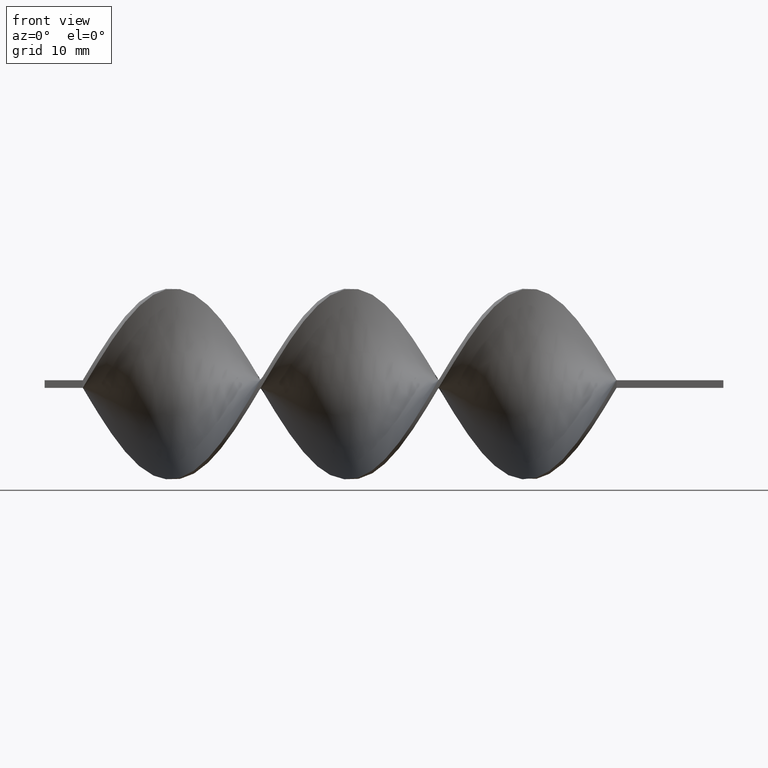
[diagram: clean part render]
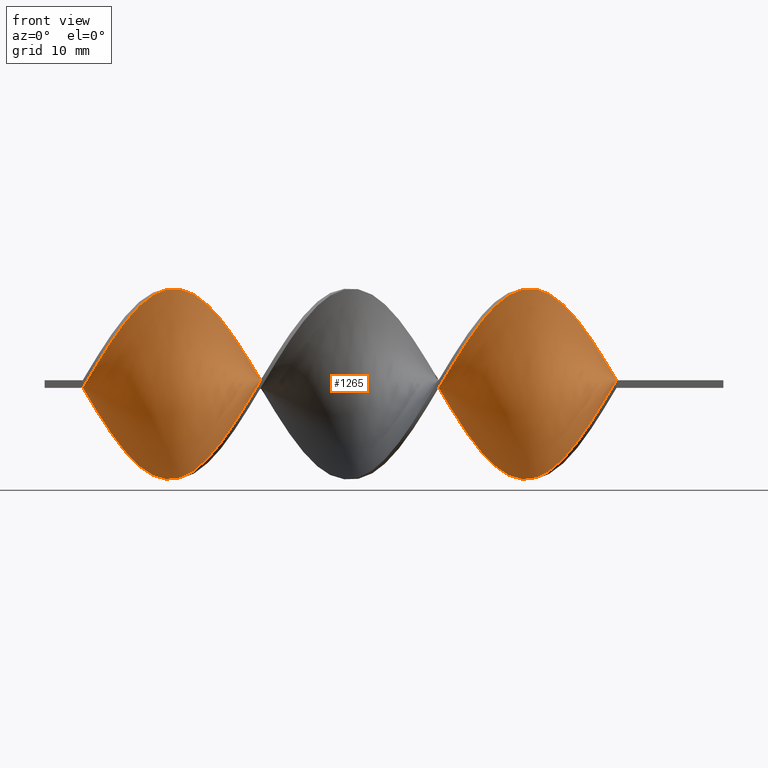
[diagram: same view with one face highlighted and labeled with its STEP entity id]
A machine part, front view. The second image highlights one B-rep face of the part: STEP entity #1265.
In plain terms, the highlighted face is a freeform B-spline surface patch.
Its self-contained STEP definition (entity closure, byte-faithful):
#2 = EDGE_CURVE ( 'NONE', #1228, #751, #1031, .T. ) ;
#4 = CARTESIAN_POINT ( 'NONE',  ( -41.82051282051281760, -10.07673670631161222, -7.567476692410682659 ) ) ;
#11 = CARTESIAN_POINT ( 'NONE',  ( -83.10256410256410220, 12.43928900838886875, -2.017774790278262564 ) ) ;
#21 = CARTESIAN_POINT ( 'NONE',  ( -26.56410256410256210, -2.003062940240564860, 12.34859258609801458 ) ) ;
#29 = CARTESIAN_POINT ( 'NONE',  ( -55.28205128205128460, 9.687945681259156672, -7.914777853924392481 ) ) ;
#36 = CARTESIAN_POINT ( 'NONE',  ( -15.79487179487179205, 12.01711488568186859, 3.476916712307497548 ) ) ;
#47 = CARTESIAN_POINT ( 'NONE',  ( -54.38461538461538680, 8.726917657472025525, -9.091107431892417878 ) ) ;
#54 = CARTESIAN_POINT ( 'NONE',  ( -64.25641025641024839, 10.83583873464323943, 6.251767663373711592 ) ) ;
#69 = VECTOR ( 'NONE', #1115, 1000.000000000000000 ) ;
#70 = CARTESIAN_POINT ( 'NONE',  ( -32.84615384615384670, 10.07673670631160512, -7.567476692410685324 ) ) ;
#77 = CARTESIAN_POINT ( 'NONE',  ( -21.17948717948717530, -7.512301267086279211, -10.00326595030512777 ) ) ;
#78 = CARTESIAN_POINT ( 'NONE',  ( -56.17948717948717530, 10.64897370504628604, -6.738448275956370637 ) ) ;
#87 = CARTESIAN_POINT ( 'NONE',  ( -40.02564102564101489, 11.95215010832772862, 3.994174999484630284 ) ) ;
#90 = CARTESIAN_POINT ( 'NONE',  ( -46.30769230769229949, 4.900069209374405155, 11.51040059004641591 ) ) ;
#93 = CARTESIAN_POINT ( 'NONE',  ( -44.51282051282050389, 7.512301267086275658, 10.00326595030512777 ) ) ;
#96 = CARTESIAN_POINT ( 'NONE',  ( -67.84615384615385381, -7.512301267086279211, -10.00326595030512777 ) ) ;
#103 = CARTESIAN_POINT ( 'NONE',  ( -17.58974358974358410, -11.30056190668700999, -5.366311637720501793 ) ) ;
#106 = CARTESIAN_POINT ( 'NONE',  ( -43.61538461538461320, 8.726917657472037959, 9.091107431892408997 ) ) ;
#107 = CARTESIAN_POINT ( 'NONE',  ( -13.99999999999999822, 12.49999999999999822, 0.5000000000000000000 ) ) ;
#108 = CARTESIAN_POINT ( 'NONE',  ( -27.46153846153846345, -3.502453542048290291, 12.10537671137499238 ) ) ;
#109 = CARTESIAN_POINT ( 'NONE',  ( -18.48717948717948545, 10.07673670631160512, 7.567476692410683548 ) ) ;
#111 = CARTESIAN_POINT ( 'NONE',  ( -23.87179487179487225, -3.502453542048291624, -12.10537671137499238 ) ) ;
#115 = CARTESIAN_POINT ( 'NONE',  ( -68.74358974358973740, -6.297684876700518686, -10.91542446871784477 ) ) ;
#123 = CARTESIAN_POINT ( 'NONE',  ( -31.05128205128205821, -8.726917657472034406, 9.091107431892414326 ) ) ;
#129 = CARTESIAN_POINT ( 'NONE',  ( -42.71794871794872250, -9.024823023018370804, -8.663288602095487789 ) ) ;
#138 = CARTESIAN_POINT ( 'NONE',  ( -67.84615384615385381, -7.512301267086279211, -10.00326595030512777 ) ) ;
#146 = CARTESIAN_POINT ( 'NONE',  ( -73.23076923076924061, -2.003062940240564860, 12.34859258609801458 ) ) ;
#155 = CARTESIAN_POINT ( 'NONE',  ( -32.84615384615384670, -10.64897370504628960, 6.738448275956368860 ) ) ;
#157 = CARTESIAN_POINT ( 'NONE',  ( -65.15384615384614619, 10.07673670631160689, 7.567476692410683548 ) ) ;
#171 = CARTESIAN_POINT ( 'NONE',  ( -76.82051282051281760, -7.512301267086276546, 10.00326595030512955 ) ) ;
#192 = ORIENTED_EDGE ( 'NONE', *, *, #699, .F. ) ;
#198 = CARTESIAN_POINT ( 'NONE',  ( -51.69230769230769340, -3.965052966688988434, 11.86500547708895326 ) ) ;
#205 = CARTESIAN_POINT ( 'NONE',  ( -20.28205128205128105, -8.726917657472039735, -9.091107431892410773 ) ) ;
#208 = CARTESIAN_POINT ( 'NONE',  ( -48.10256410256409509, 2.003062940240569745, 12.34859258609801280 ) ) ;
#213 = CARTESIAN_POINT ( 'NONE',  ( -41.82051282051281760, 10.64897370504628960, 6.738448275956367084 ) ) ;
#218 = CARTESIAN_POINT ( 'NONE',  ( -29.25641025641025550, 5.405725462660110558, -11.38356088229227048 ) ) ;
#220 = CARTESIAN_POINT ( 'NONE',  ( -70.53846153846153300, 2.524380470717862757, 12.34645007188563959 ) ) ;
#228 = CARTESIAN_POINT ( 'NONE',  ( -37.33333333333332860, 12.49999999999999822, -0.5000000000000015543 ) ) ;
#230 = ORIENTED_EDGE ( 'NONE', *, *, #2, .T. ) ;
#232 = CARTESIAN_POINT ( 'NONE',  ( -57.97435897435897090, -11.59494076297487553, 4.936058634336744966 ) ) ;
#235 = CARTESIAN_POINT ( 'NONE',  ( -53.48717948717948900, -6.689317401192618640, 10.57133069703628614 ) ) ;
#236 = LINE ( 'NONE', #107, #69 ) ;
#238 = CARTESIAN_POINT ( 'NONE',  ( -31.94871794871794535, -9.687945681259160224, 7.914777853924392481 ) ) ;
#240 = CARTESIAN_POINT ( 'NONE',  ( -26.56410256410256210, -2.003062940240564860, 12.34859258609801458 ) ) ;
#242 = CARTESIAN_POINT ( 'NONE',  ( -49.89743589743589069, -1.010354066142503893, 12.46912926635333818 ) ) ;
#246 = CARTESIAN_POINT ( 'NONE',  ( -71.43589743589743080, -2.003062940240569301, -12.34859258609801458 ) ) ;
#247 = CARTESIAN_POINT ( 'NONE',  ( -13.99999999999999822, 12.49999999999999822, 0.5000000000000000000 ) ) ;
#251 = CARTESIAN_POINT ( 'NONE',  ( -81.30769230769232081, -11.95215010832773039, 3.994174999484638722 ) ) ;
#253 = CARTESIAN_POINT ( 'NONE',  ( -28.35897435897435770, -4.900069209374403378, 11.51040059004641769 ) ) ;
#254 = CARTESIAN_POINT ( 'NONE',  ( -29.25641025641025905, -6.297684876700517798, 10.91542446871784655 ) ) ;
#258 = CARTESIAN_POINT ( 'NONE',  ( -76.82051282051281760, -7.512301267086276546, 10.00326595030512955 ) ) ;
#260 = CARTESIAN_POINT ( 'NONE',  ( -79.51282051282051100, 10.07673670631160512, -7.567476692410685324 ) ) ;
#269 = CARTESIAN_POINT ( 'NONE',  ( -22.07692307692308376, 5.405725462660113223, 11.38356088229226870 ) ) ;
#272 = CARTESIAN_POINT ( 'NONE',  ( -83.10256410256410220, 12.43928900838886875, -2.017774790278262564 ) ) ;
#276 = CARTESIAN_POINT ( 'NONE',  ( -68.74358974358973740, 5.405725462660113223, 11.38356088229226870 ) ) ;
#279 = CARTESIAN_POINT ( 'NONE',  ( -40.02564102564102200, -11.59494076297487730, -4.936058634336734308 ) ) ;
#280 = CARTESIAN_POINT ( 'NONE',  ( -75.92307692307690559, 5.405725462660110558, -11.38356088229227048 ) ) ;
#285 = CARTESIAN_POINT ( 'NONE',  ( -80.41025641025640880, -11.30056190668700822, 5.366311637720503569 ) ) ;
#290 = CARTESIAN_POINT ( 'NONE',  ( -35.53846153846153300, -12.25643054996943171, 2.505974894881450421 ) ) ;
#291 = CARTESIAN_POINT ( 'NONE',  ( -84.00000000000000000, -12.50000000000000178, -0.4999999999999985012 ) ) ;
#302 = CARTESIAN_POINT ( 'NONE',  ( -57.97435897435897090, 11.95215010832772684, -3.994174999484640498 ) ) ;
#324 = CARTESIAN_POINT ( 'NONE',  ( -33.74358974358973740, 10.83583873464323766, -6.251767663373713368 ) ) ;
#331 = CARTESIAN_POINT ( 'NONE',  ( -69.64102564102564941, 3.965052966688987546, 11.86500547708895148 ) ) ;
#336 = CARTESIAN_POINT ( 'NONE',  ( -50.79487179487178139, -2.524380470717860536, 12.34645007188564136 ) ) ;
#339 = CARTESIAN_POINT ( 'NONE',  ( -28.35897435897435059, 3.965052966688984437, -11.86500547708895326 ) ) ;
#341 = CARTESIAN_POINT ( 'NONE',  ( -62.46153846153845990, 12.01711488568186859, 3.476916712307497548 ) ) ;
#345 = CARTESIAN_POINT ( 'NONE',  ( -18.48717948717948545, -10.64897370504629137, -6.738448275956367972 ) ) ;
#347 = CARTESIAN_POINT ( 'NONE',  ( -71.43589743589743080, -2.003062940240569301, -12.34859258609801458 ) ) ;
#358 = CARTESIAN_POINT ( 'NONE',  ( -31.94871794871793824, 9.024823023018361923, -8.663288602095494895 ) ) ;
#360 = CARTESIAN_POINT ( 'NONE',  ( -74.12820512820510999, -3.502453542048290291, 12.10537671137499238 ) ) ;
#365 = CARTESIAN_POINT ( 'NONE',  ( -53.48717948717948900, -6.689317401192618640, 10.57133069703628614 ) ) ;
#369 = CARTESIAN_POINT ( 'NONE',  ( -21.17948717948717530, -7.512301267086279211, -10.00326595030512777 ) ) ;
#372 = CARTESIAN_POINT ( 'NONE',  ( -25.66666666666666785, -0.5036723384328426478, 12.59180846082103855 ) ) ;
#373 = CARTESIAN_POINT ( 'NONE',  ( -20.28205128205128460, 7.972909339725126721, 9.759100511780298248 ) ) ;
#375 = CARTESIAN_POINT ( 'NONE',  ( -51.69230769230769340, -3.965052966688988434, 11.86500547708895326 ) ) ;
#379 = CARTESIAN_POINT ( 'NONE',  ( -76.82051282051281760, 6.689317401192616863, -10.57133069703628436 ) ) ;
#380 = CARTESIAN_POINT ( 'NONE',  ( -16.69230769230769340, 11.59494076297487375, 4.936058634336738749 ) ) ;
#385 = CARTESIAN_POINT ( 'NONE',  ( -62.46153846153845990, -12.25643054996943171, -2.505974894881445980 ) ) ;
#387 = CARTESIAN_POINT ( 'NONE',  ( -27.46153846153846345, -3.502453542048290291, 12.10537671137499238 ) ) ;
#389 = CARTESIAN_POINT ( 'NONE',  ( -80.41025641025640880, 10.83583873464323766, -6.251767663373713368 ) ) ;
#395 = CARTESIAN_POINT ( 'NONE',  ( -45.41025641025640880, -5.405725462660122993, -11.38356088229226515 ) ) ;
#404 = CARTESIAN_POINT ( 'NONE',  ( -78.61538461538461320, -9.687945681259160224, 7.914777853924392481 ) ) ;
#405 = CARTESIAN_POINT ( 'NONE',  ( -15.79487179487179205, 12.01711488568186859, 3.476916712307497548 ) ) ;
#408 = CARTESIAN_POINT ( 'NONE',  ( -36.43589743589743790, -12.56071099161113480, 1.017774790278262564 ) ) ;
#412 = CARTESIAN_POINT ( 'NONE',  ( -79.51282051282051100, -10.64897370504628960, 6.738448275956368860 ) ) ;
#413 = CARTESIAN_POINT ( 'NONE',  ( -75.92307692307693401, -6.297684876700518686, 10.91542446871784477 ) ) ;
#422 = CARTESIAN_POINT ( 'NONE',  ( -17.58974358974358765, 10.83583873464323943, 6.251767663373711592 ) ) ;
#424 = CARTESIAN_POINT ( 'NONE',  ( -62.46153846153845990, 12.01711488568186859, 3.476916712307497548 ) ) ;
#428 = CARTESIAN_POINT ( 'NONE',  ( -40.92307692307691980, -10.83583873464324299, -6.251767663373710704 ) ) ;
#436 = CARTESIAN_POINT ( 'NONE',  ( -77.71794871794872961, -8.726917657472034406, 9.091107431892414326 ) ) ;
#440 = CARTESIAN_POINT ( 'NONE',  ( -71.43589743589743080, 1.010354066142511442, 12.46912926635333640 ) ) ;
#447 = CARTESIAN_POINT ( 'NONE',  ( -66.05128205128204399, 9.024823023018365475, 8.663288602095489566 ) ) ;
#458 = CARTESIAN_POINT ( 'NONE',  ( -14.89743589743589247, -12.56071099161113658, -1.017774790278256791 ) ) ;
#463 = CARTESIAN_POINT ( 'NONE',  ( -66.05128205128204399, 9.024823023018365475, 8.663288602095489566 ) ) ;
#467 = CARTESIAN_POINT ( 'NONE',  ( -48.10256410256409509, 2.003062940240569745, 12.34859258609801280 ) ) ;
#468 = CARTESIAN_POINT ( 'NONE',  ( -41.82051282051281760, -10.07673670631161045, -7.567476692410682659 ) ) ;
#470 = CARTESIAN_POINT ( 'NONE',  ( -66.94871794871794179, -8.726917657472039735, -9.091107431892412549 ) ) ;
#476 = CARTESIAN_POINT ( 'NONE',  ( -29.25641025641025550, 5.405725462660111447, -11.38356088229226870 ) ) ;
#479 = CARTESIAN_POINT ( 'NONE',  ( -47.20512820512820440, 3.502453542048287183, 12.10537671137499238 ) ) ;
#487 = CARTESIAN_POINT ( 'NONE',  ( -31.05128205128205465, 7.972909339725120503, -9.759100511780301801 ) ) ;
#489 = CARTESIAN_POINT ( 'NONE',  ( -57.07692307692306599, -10.83583873464323766, 6.251767663373719586 ) ) ;
#493 = CARTESIAN_POINT ( 'NONE',  ( -49.89743589743589069, -1.010354066142503893, 12.46912926635333818 ) ) ;
#495 = CARTESIAN_POINT ( 'NONE',  ( -17.58974358974358410, -11.30056190668700999, -5.366311637720501793 ) ) ;
#497 = CARTESIAN_POINT ( 'NONE',  ( -66.94871794871792758, -8.726917657472039735, -9.091107431892410773 ) ) ;
#501 = CARTESIAN_POINT ( 'NONE',  ( -61.56410256410256920, -12.56071099161113480, -1.017774790278256569 ) ) ;
#506 = CARTESIAN_POINT ( 'NONE',  ( -39.12820512820512420, -12.01711488568187569, -3.476916712307494439 ) ) ;
#510 = CARTESIAN_POINT ( 'NONE',  ( -33.74358974358974450, -11.30056190668700822, 5.366311637720503569 ) ) ;
#511 = CARTESIAN_POINT ( 'NONE',  ( -13.99999999999999822, 12.49999999999999822, 0.5000000000000000000 ) ) ;
#516 = EDGE_CURVE ( 'NONE', #1343, #751, #1180, .T. ) ;
#517 = CARTESIAN_POINT ( 'NONE',  ( -43.61538461538461320, -7.972909339725131161, -9.759100511780294696 ) ) ;
#528 = CARTESIAN_POINT ( 'NONE',  ( -73.23076923076922640, 1.010354066142507001, -12.46912926635333640 ) ) ;
#536 = CARTESIAN_POINT ( 'NONE',  ( -56.17948717948717530, 10.64897370504628604, -6.738448275956371525 ) ) ;
#544 = CARTESIAN_POINT ( 'NONE',  ( -31.05128205128205465, -8.726917657472034406, 9.091107431892416102 ) ) ;
#547 = CARTESIAN_POINT ( 'NONE',  ( -37.33333333333332860, -12.50000000000000178, -0.4999999999999985012 ) ) ;
#553 = CARTESIAN_POINT ( 'NONE',  ( -69.64102564102564941, 3.965052966688987546, 11.86500547708895148 ) ) ;
#558 = CARTESIAN_POINT ( 'NONE',  ( -66.94871794871794179, 7.972909339725125832, 9.759100511780298248 ) ) ;
#567 = CARTESIAN_POINT ( 'NONE',  ( -84.00000000000000000, 4.166666666666666075, -0.5000000000000005551 ) ) ;
#570 = CARTESIAN_POINT ( 'NONE',  ( -51.69230769230769340, 4.900069209374400714, -11.51040059004641769 ) ) ;
#577 = FACE_OUTER_BOUND ( 'NONE', #1103, .T. ) ;
#578 = CARTESIAN_POINT ( 'NONE',  ( -47.20512820512820440, -2.524380470717865421, -12.34645007188563959 ) ) ;
#584 = CARTESIAN_POINT ( 'NONE',  ( -30.15384615384614975, 6.689317401192616863, -10.57133069703628436 ) ) ;
#587 = CARTESIAN_POINT ( 'NONE',  ( -56.17948717948717530, -10.07673670631160689, 7.567476692410687100 ) ) ;
#588 = CARTESIAN_POINT ( 'NONE',  ( -75.02564102564102200, -4.900069209374403378, 11.51040059004641769 ) ) ;
#596 = CARTESIAN_POINT ( 'NONE',  ( -70.53846153846153300, -3.502453542048291624, -12.10537671137499238 ) ) ;
#601 = CARTESIAN_POINT ( 'NONE',  ( -59.76923076923077360, -12.43928900838887230, 2.017774790278263897 ) ) ;
#605 = CARTESIAN_POINT ( 'NONE',  ( -68.74358974358973740, -6.297684876700517798, -10.91542446871784655 ) ) ;
#607 = CARTESIAN_POINT ( 'NONE',  ( -63.35897435897436480, 11.59494076297487375, 4.936058634336738749 ) ) ;
#609 = CARTESIAN_POINT ( 'NONE',  ( -31.94871794871793824, 9.024823023018361923, -8.663288602095494895 ) ) ;
#612 = CARTESIAN_POINT ( 'NONE',  ( -40.92307692307691980, 11.30056190668700822, 5.366311637720500904 ) ) ;
#616 = CARTESIAN_POINT ( 'NONE',  ( -75.02564102564102200, 3.965052966688984437, -11.86500547708895326 ) ) ;
#619 = CARTESIAN_POINT ( 'NONE',  ( -35.53846153846153300, 12.01711488568186859, -3.476916712307501989 ) ) ;
#622 = CARTESIAN_POINT ( 'NONE',  ( -19.38461538461538325, 9.024823023018365475, 8.663288602095489566 ) ) ;
#631 = CARTESIAN_POINT ( 'NONE',  ( -30.15384615384615330, -7.512301267086276546, 10.00326595030512955 ) ) ;
#638 = CARTESIAN_POINT ( 'NONE',  ( -16.69230769230769695, 11.59494076297487375, 4.936058634336738749 ) ) ;
#647 = CARTESIAN_POINT ( 'NONE',  ( -75.92307692307691980, 5.405725462660111447, -11.38356088229226870 ) ) ;
#657 = CARTESIAN_POINT ( 'NONE',  ( -13.99999999999999467, -12.50000000000000178, 0.5000000000000000000 ) ) ;
#658 = CARTESIAN_POINT ( 'NONE',  ( -79.51282051282051100, 10.07673670631160334, -7.567476692410685324 ) ) ;
#661 = CARTESIAN_POINT ( 'NONE',  ( -33.74358974358974450, -11.30056190668700822, 5.366311637720503569 ) ) ;
#663 = CARTESIAN_POINT ( 'NONE',  ( -78.61538461538461320, -9.687945681259160224, 7.914777853924392481 ) ) ;
#689 = CARTESIAN_POINT ( 'NONE',  ( -50.79487179487178850, 3.502453542048282742, -12.10537671137499238 ) ) ;
#699 = EDGE_CURVE ( 'NONE', #1228, #985, #236, .T. ) ;
#701 = CARTESIAN_POINT ( 'NONE',  ( -46.30769230769229949, 4.900069209374405155, 11.51040059004641591 ) ) ;
#702 = CARTESIAN_POINT ( 'NONE',  ( -54.38461538461538680, 8.726917657472025525, -9.091107431892417878 ) ) ;
#706 = CARTESIAN_POINT ( 'NONE',  ( -57.07692307692307310, 11.30056190668700289, -5.366311637720509786 ) ) ;
#709 = CARTESIAN_POINT ( 'NONE',  ( -22.07692307692307665, -6.297684876700518686, -10.91542446871784477 ) ) ;
#711 = CARTESIAN_POINT ( 'NONE',  ( -49.00000000000000000, 0.5036723384328417596, 12.59180846082103855 ) ) ;
#716 = CARTESIAN_POINT ( 'NONE',  ( -43.61538461538461320, 8.726917657472037959, 9.091107431892407220 ) ) ;
#718 = CARTESIAN_POINT ( 'NONE',  ( -36.43589743589743080, 12.43928900838886875, -2.017774790278262564 ) ) ;
#725 = CARTESIAN_POINT ( 'NONE',  ( -26.56410256410255855, 1.010354066142507001, -12.46912926635333640 ) ) ;
#728 = CARTESIAN_POINT ( 'NONE',  ( -38.23076923076921929, 12.56071099161113125, 1.017774790278253905 ) ) ;
#731 = CARTESIAN_POINT ( 'NONE',  ( -58.87179487179486159, -12.01711488568187036, 3.476916712307509094 ) ) ;
#733 = CARTESIAN_POINT ( 'NONE',  ( -59.76923076923076650, -12.43928900838887230, 2.017774790278263897 ) ) ;
#737 = CARTESIAN_POINT ( 'NONE',  ( -61.56410256410256920, -12.56071099161113658, -1.017774790278256791 ) ) ;
#740 = CARTESIAN_POINT ( 'NONE',  ( -31.05128205128205110, 7.972909339725121391, -9.759100511780301801 ) ) ;
#744 = CARTESIAN_POINT ( 'NONE',  ( -80.41025641025640880, -11.30056190668700822, 5.366311637720503569 ) ) ;
#746 =( BOUNDED_SURFACE ( )  B_SPLINE_SURFACE ( 1, 2, ( 
 ( #961, #458, #1439, #1077, #103, #345, #848, #205, #77, #709, #1213, #1469, #1085, #1356, #725, #842, #1205, #476, #584, #487, #609, #70, #324, #1111, #824, #1102, #1339, #1569, #1601, #87, #1459, #213, #1321, #716, #93, #1560, #701, #1221, #467, #1578, #493, #336, #198, #1452, #365, #857, #836, #1590, #1091, #232, #731, #601, #1139, #737, #385, #994, #1389, #747, #1268, #497, #138, #115, #1253, #892, #246, #1398, #528, #1490, #616, #647, #379, #863, #868, #260, #1117, #998, #1505, #11, #1607 ),
 ( #873, #988, #405, #638, #1017, #1380, #622, #1485, #1147, #269, #1495, #756, #1237, #372, #21, #108, #253, #1363, #631, #123, #238, #1242, #510, #1260, #765, #1124, #1615, #1369, #506, #1512, #1132, #4, #129, #517, #1004, #395, #883, #1172, #1026, #1404, #1155, #1183, #1055, #899, #774, #47, #29, #536, #1275, #302, #1047, #1544, #910, #783, #424, #1412, #54, #157, #447, #558, #1536, #276, #553, #1287, #440, #926, #146, #1518, #1425, #413, #171, #436, #663, #808, #285, #919, #1418, #1164, #291 ) ),
 .UNSPECIFIED., .F., .F., .F. ) 
 B_SPLINE_SURFACE_WITH_KNOTS ( ( 2, 2 ),
 ( 3, 2, 2, 2, 2, 2, 2, 2, 2, 2, 2, 2, 2, 2, 2, 2, 2, 2, 2, 2, 2, 2, 2, 2, 2, 2, 2, 2, 2, 2, 2, 2, 2, 2, 2, 2, 2, 2, 2, 3 ),
 ( 0.000000000000000000, 1.000000000000000000 ),
 ( 0.000000000000000000, 0.01923076923076923184, 0.03846153846153846367, 0.05769230769230769551, 0.07692307692307692735, 0.09615384615384615918, 0.1153846153846153910, 0.1346153846153846090, 0.1538461538461538547, 0.1730769230769230727, 0.1923076923076923184, 0.2115384615384615363, 0.2307692307692307820, 0.2500000000000000000, 0.2692307692307692180, 0.2884615384615384359, 0.3076923076923077094, 0.3269230769230769273, 0.3461538461538461453, 0.3653846153846153633, 0.3846153846153846367, 0.4038461538461538547, 0.4230769230769230727, 0.4423076923076922906, 0.4615384615384615641, 0.4807692307692307820, 0.5000000000000000000, 0.5192307692307692735, 0.5384615384615384359, 0.5576923076923077094, 0.5769230769230768718, 0.5961538461538461453, 0.6153846153846154188, 0.6346153846153845812, 0.6538461538461538547, 0.6730769230769231282, 0.6923076923076922906, 0.7115384615384615641, 0.7307692307692307265, 0.7500000000000000000 ),
 .UNSPECIFIED. ) 
 GEOMETRIC_REPRESENTATION_ITEM ( )  RATIONAL_B_SPLINE_SURFACE ( (
 ( 1.000000000000000000, 0.9927088740980539727, 1.000000000000000000, 0.9927088740980539727, 1.000000000000000000, 0.9927088740980539727, 1.000000000000000000, 0.9927088740980539727, 1.000000000000000000, 0.9927088740980539727, 1.000000000000000000, 0.9927088740980539727, 1.000000000000000000, 0.9927088740980539727, 1.000000000000000000, 0.9927088740980539727, 1.000000000000000000, 0.9927088740980539727, 1.000000000000000000, 0.9927088740980539727, 1.000000000000000000, 0.9927088740980539727, 1.000000000000000000, 0.9927088740980539727, 1.000000000000000000, 0.9927088740980539727, 1.000000000000000000, 0.9927088740980539727, 1.000000000000000000, 0.9927088740980539727, 1.000000000000000000, 0.9927088740980539727, 1.000000000000000000, 0.9927088740980539727, 1.000000000000000000, 0.9927088740980539727, 1.000000000000000000, 0.9927088740980539727, 1.000000000000000000, 0.9927088740980539727, 1.000000000000000000, 0.9927088740980539727, 1.000000000000000000, 0.9927088740980539727, 1.000000000000000000, 0.9927088740980539727, 1.000000000000000000, 0.9927088740980539727, 1.000000000000000000, 0.9927088740980539727, 1.000000000000000000, 0.9927088740980539727, 1.000000000000000000, 0.9927088740980539727, 1.000000000000000000, 0.9927088740980539727, 1.000000000000000000, 0.9927088740980539727, 1.000000000000000000, 0.9927088740980539727, 1.000000000000000000, 0.9927088740980539727, 1.000000000000000000, 0.9927088740980539727, 1.000000000000000000, 0.9927088740980539727, 1.000000000000000000, 0.9927088740980539727, 1.000000000000000000, 0.9927088740980539727, 1.000000000000000000, 0.9927088740980539727, 1.000000000000000000, 0.9927088740980539727, 1.000000000000000000, 0.9927088740980539727, 1.000000000000000000, 0.9927088740980539727, 1.000000000000000000),
 ( 1.000000000000000000, 0.9927088740980539727, 1.000000000000000000, 0.9927088740980539727, 1.000000000000000000, 0.9927088740980539727, 1.000000000000000000, 0.9927088740980539727, 1.000000000000000000, 0.9927088740980539727, 1.000000000000000000, 0.9927088740980539727, 1.000000000000000000, 0.9927088740980539727, 1.000000000000000000, 0.9927088740980539727, 1.000000000000000000, 0.9927088740980539727, 1.000000000000000000, 0.9927088740980539727, 1.000000000000000000, 0.9927088740980539727, 1.000000000000000000, 0.9927088740980539727, 1.000000000000000000, 0.9927088740980539727, 1.000000000000000000, 0.9927088740980539727, 1.000000000000000000, 0.9927088740980539727, 1.000000000000000000, 0.9927088740980539727, 1.000000000000000000, 0.9927088740980539727, 1.000000000000000000, 0.9927088740980539727, 1.000000000000000000, 0.9927088740980539727, 1.000000000000000000, 0.9927088740980539727, 1.000000000000000000, 0.9927088740980539727, 1.000000000000000000, 0.9927088740980539727, 1.000000000000000000, 0.9927088740980539727, 1.000000000000000000, 0.9927088740980539727, 1.000000000000000000, 0.9927088740980539727, 1.000000000000000000, 0.9927088740980539727, 1.000000000000000000, 0.9927088740980539727, 1.000000000000000000, 0.9927088740980539727, 1.000000000000000000, 0.9927088740980539727, 1.000000000000000000, 0.9927088740980539727, 1.000000000000000000, 0.9927088740980539727, 1.000000000000000000, 0.9927088740980539727, 1.000000000000000000, 0.9927088740980539727, 1.000000000000000000, 0.9927088740980539727, 1.000000000000000000, 0.9927088740980539727, 1.000000000000000000, 0.9927088740980539727, 1.000000000000000000, 0.9927088740980539727, 1.000000000000000000, 0.9927088740980539727, 1.000000000000000000, 0.9927088740980539727, 1.000000000000000000) ) ) 
 REPRESENTATION_ITEM ( '' )  SURFACE ( )  );
#747 = CARTESIAN_POINT ( 'NONE',  ( -65.15384615384614619, -10.64897370504629137, -6.738448275956367972 ) ) ;
#751 = VERTEX_POINT ( 'NONE', #1182 ) ;
#754 = CARTESIAN_POINT ( 'NONE',  ( -83.10256410256410220, -12.56071099161113480, 1.017774790278262564 ) ) ;
#756 = CARTESIAN_POINT ( 'NONE',  ( -23.87179487179487580, 2.524380470717862757, 12.34645007188564136 ) ) ;
#757 = CARTESIAN_POINT ( 'NONE',  ( -30.15384615384615330, -7.512301267086276546, 10.00326595030512955 ) ) ;
#760 = CARTESIAN_POINT ( 'NONE',  ( -75.02564102564102200, 3.965052966688984437, -11.86500547708895326 ) ) ;
#765 = CARTESIAN_POINT ( 'NONE',  ( -35.53846153846153300, -12.25643054996943171, 2.505974894881450421 ) ) ;
#774 = CARTESIAN_POINT ( 'NONE',  ( -53.48717948717948900, 7.512301267086271217, -10.00326595030513133 ) ) ;
#783 = CARTESIAN_POINT ( 'NONE',  ( -61.56410256410256920, 12.43928900838886875, 2.017774790278256791 ) ) ;
#808 = CARTESIAN_POINT ( 'NONE',  ( -79.51282051282051100, -10.64897370504628960, 6.738448275956369748 ) ) ;
#816 = CARTESIAN_POINT ( 'NONE',  ( -42.71794871794872250, -9.024823023018370804, -8.663288602095487789 ) ) ;
#824 = CARTESIAN_POINT ( 'NONE',  ( -35.53846153846153300, 12.01711488568186859, -3.476916712307501989 ) ) ;
#836 = CARTESIAN_POINT ( 'NONE',  ( -55.28205128205128460, -9.024823023018361923, 8.663288602095494895 ) ) ;
#839 = CARTESIAN_POINT ( 'NONE',  ( -69.64102564102563520, -4.900069209374406931, -11.51040059004641591 ) ) ;
#842 = CARTESIAN_POINT ( 'NONE',  ( -27.46153846153845990, 2.524380470717861424, -12.34645007188564136 ) ) ;
#844 = CARTESIAN_POINT ( 'NONE',  ( -22.97435897435896734, -4.900069209374406931, -11.51040059004641591 ) ) ;
#848 = CARTESIAN_POINT ( 'NONE',  ( -19.38461538461537970, -9.687945681259163777, -7.914777853924387152 ) ) ;
#852 = CARTESIAN_POINT ( 'NONE',  ( -33.74358974358973740, 10.83583873464323766, -6.251767663373713368 ) ) ;
#857 = CARTESIAN_POINT ( 'NONE',  ( -54.38461538461537970, -7.972909339725118727, 9.759100511780305354 ) ) ;
#860 = CARTESIAN_POINT ( 'NONE',  ( -25.66666666666666785, -0.5036723384328442021, -12.59180846082103855 ) ) ;
#863 = CARTESIAN_POINT ( 'NONE',  ( -77.71794871794872961, 7.972909339725120503, -9.759100511780301801 ) ) ;
#865 = CARTESIAN_POINT ( 'NONE',  ( -20.28205128205128105, -8.726917657472039735, -9.091107431892412549 ) ) ;
#868 = CARTESIAN_POINT ( 'NONE',  ( -78.61538461538461320, 9.024823023018361923, -8.663288602095494895 ) ) ;
#873 = CARTESIAN_POINT ( 'NONE',  ( -13.99999999999999822, 12.49999999999999822, 0.5000000000000000000 ) ) ;
#875 = CARTESIAN_POINT ( 'NONE',  ( -28.35897435897435770, -4.900069209374403378, 11.51040059004641769 ) ) ;
#879 = CARTESIAN_POINT ( 'NONE',  ( -82.20512820512820440, 12.01711488568186859, -3.476916712307501989 ) ) ;
#883 = CARTESIAN_POINT ( 'NONE',  ( -46.30769230769230660, -3.965052966688992875, -11.86500547708895148 ) ) ;
#891 = CARTESIAN_POINT ( 'NONE',  ( -82.20512820512820440, -12.25643054996943171, 2.505974894881450421 ) ) ;
#892 = CARTESIAN_POINT ( 'NONE',  ( -70.53846153846153300, -3.502453542048291624, -12.10537671137499238 ) ) ;
#894 = CARTESIAN_POINT ( 'NONE',  ( -39.12820512820512420, -12.01711488568187569, -3.476916712307494439 ) ) ;
#899 = CARTESIAN_POINT ( 'NONE',  ( -52.58974358974358410, 6.297684876700509804, -10.91542446871784477 ) ) ;
#910 = CARTESIAN_POINT ( 'NONE',  ( -60.66666666666666430, 12.49999999999999822, 0.5000000000000000000 ) ) ;
#916 = CARTESIAN_POINT ( 'NONE',  ( -15.79487179487178850, -12.25643054996943171, -2.505974894881445980 ) ) ;
#919 = CARTESIAN_POINT ( 'NONE',  ( -81.30769230769233502, -11.95215010832773039, 3.994174999484638722 ) ) ;
#922 = CARTESIAN_POINT ( 'NONE',  ( -44.51282051282051100, -6.689317401192623080, -10.57133069703628259 ) ) ;
#926 = CARTESIAN_POINT ( 'NONE',  ( -72.33333333333332860, -0.5036723384328426478, 12.59180846082103855 ) ) ;
#942 = CARTESIAN_POINT ( 'NONE',  ( -53.48717948717948900, 7.512301267086271217, -10.00326595030513133 ) ) ;
#945 = CARTESIAN_POINT ( 'NONE',  ( -13.99999999999999467, -12.50000000000000178, 0.5000000000000000000 ) ) ;
#948 = CARTESIAN_POINT ( 'NONE',  ( -68.74358974358973740, 5.405725462660112335, 11.38356088229227048 ) ) ;
#949 = CARTESIAN_POINT ( 'NONE',  ( -84.00000000000000000, -12.50000000000000178, -0.4999999999999985012 ) ) ;
#956 = CARTESIAN_POINT ( 'NONE',  ( -18.48717948717948545, -10.64897370504629137, -6.738448275956367084 ) ) ;
#961 = CARTESIAN_POINT ( 'NONE',  ( -13.99999999999999467, -12.50000000000000178, 0.5000000000000000000 ) ) ;
#962 = ORIENTED_EDGE ( 'NONE', *, *, #1543, .F. ) ;
#966 = CARTESIAN_POINT ( 'NONE',  ( -54.38461538461537970, -7.972909339725119615, 9.759100511780305354 ) ) ;
#974 = CARTESIAN_POINT ( 'NONE',  ( -72.33333333333332860, -0.5036723384328442021, -12.59180846082103855 ) ) ;
#975 = CARTESIAN_POINT ( 'NONE',  ( -72.33333333333332860, -0.5036723384328426478, 12.59180846082103855 ) ) ;
#982 = CARTESIAN_POINT ( 'NONE',  ( -24.76923076923076650, -2.003062940240569301, -12.34859258609801458 ) ) ;
#984 = CARTESIAN_POINT ( 'NONE',  ( -60.66666666666666430, 12.49999999999999822, 0.5000000000000000000 ) ) ;
#985 = VERTEX_POINT ( 'NONE', #657 ) ;
#988 = CARTESIAN_POINT ( 'NONE',  ( -14.89743589743589602, 12.43928900838886875, 2.017774790278256791 ) ) ;
#989 = CARTESIAN_POINT ( 'NONE',  ( -22.07692307692308020, 5.405725462660112335, 11.38356088229227048 ) ) ;
#991 = CARTESIAN_POINT ( 'NONE',  ( -62.46153846153845990, -12.25643054996943171, -2.505974894881445980 ) ) ;
#994 = CARTESIAN_POINT ( 'NONE',  ( -63.35897435897434349, -11.95215010832773217, -3.994174999484634281 ) ) ;
#998 = CARTESIAN_POINT ( 'NONE',  ( -81.30769230769233502, 11.59494076297487197, -4.936058634336743189 ) ) ;
#1000 = CARTESIAN_POINT ( 'NONE',  ( -22.97435897435897090, 3.965052966688987546, 11.86500547708895148 ) ) ;
#1004 = CARTESIAN_POINT ( 'NONE',  ( -44.51282051282051100, -6.689317401192623080, -10.57133069703628259 ) ) ;
#1013 = CARTESIAN_POINT ( 'NONE',  ( -75.92307692307691980, -6.297684876700517798, 10.91542446871784655 ) ) ;
#1017 = CARTESIAN_POINT ( 'NONE',  ( -17.58974358974358765, 10.83583873464323943, 6.251767663373711592 ) ) ;
#1023 = CARTESIAN_POINT ( 'NONE',  ( -77.71794871794874382, -8.726917657472034406, 9.091107431892416102 ) ) ;
#1026 = CARTESIAN_POINT ( 'NONE',  ( -48.10256410256410220, -1.010354066142519658, -12.46912926635333818 ) ) ;
#1029 = CARTESIAN_POINT ( 'NONE',  ( -38.23076923076922640, -12.43928900838887230, -2.017774790278253683 ) ) ;
#1030 = CARTESIAN_POINT ( 'NONE',  ( -76.82051282051281760, 6.689317401192616863, -10.57133069703628436 ) ) ;
#1031 =( BOUNDED_CURVE ( )  B_SPLINE_CURVE ( 2, ( #511, #1243, #36, #380, #422, #109, #1357, #373, #1254, #989, #1000, #1486, #1364, #1497, #240, #387, #875, #254, #757, #544, #1261, #155, #661, #1162, #290, #408, #547, #1029, #894, #279, #428, #468, #816, #1058, #922, #1570, #1050, #578, #1078, #1538, #1300, #689, #570, #1553, #942, #702, #1206, #78, #706, #1095, #1474, #1463, #984, #1483, #341, #607, #1344, #1565, #463, #1107, #1596, #948, #331, #220, #1227, #975, #1327, #360, #588, #1013, #258, #1023, #404, #412, #744, #251, #891, #754, #1259 ),
 .UNSPECIFIED., .F., .T. ) 
 B_SPLINE_CURVE_WITH_KNOTS ( ( 3, 2, 2, 2, 2, 2, 2, 2, 2, 2, 2, 2, 2, 2, 2, 2, 2, 2, 2, 2, 2, 2, 2, 2, 2, 2, 2, 2, 2, 2, 2, 2, 2, 2, 2, 2, 2, 2, 2, 3 ),
 ( 0.000000000000000000, 0.01923076923076923184, 0.03846153846153846367, 0.05769230769230768857, 0.07692307692307692735, 0.09615384615384615918, 0.1153846153846153771, 0.1346153846153846090, 0.1538461538461538547, 0.1730769230769230449, 0.1923076923076923184, 0.2115384615384615363, 0.2307692307692307543, 0.2500000000000000000, 0.2692307692307692180, 0.2884615384615384359, 0.3076923076923077094, 0.3269230769230769273, 0.3461538461538460898, 0.3653846153846153633, 0.3846153846153846367, 0.4038461538461539102, 0.4230769230769230727, 0.4423076923076922906, 0.4615384615384615086, 0.4807692307692307820, 0.5000000000000000000, 0.5192307692307692735, 0.5384615384615384359, 0.5576923076923077094, 0.5769230769230768718, 0.5961538461538461453, 0.6153846153846154188, 0.6346153846153845812, 0.6538461538461538547, 0.6730769230769230171, 0.6923076923076921796, 0.7115384615384615641, 0.7307692307692307265, 0.7500000000000000000 ),
 .UNSPECIFIED. ) 
 CURVE ( )  GEOMETRIC_REPRESENTATION_ITEM ( )  RATIONAL_B_SPLINE_CURVE ( ( 1.000000000000000000, 0.9927088740980539727, 1.000000000000000000, 0.9927088740980539727, 1.000000000000000000, 0.9927088740980539727, 1.000000000000000000, 0.9927088740980539727, 1.000000000000000000, 0.9927088740980539727, 1.000000000000000000, 0.9927088740980539727, 1.000000000000000000, 0.9927088740980539727, 1.000000000000000000, 0.9927088740980539727, 1.000000000000000000, 0.9927088740980539727, 1.000000000000000000, 0.9927088740980539727, 1.000000000000000000, 0.9927088740980539727, 1.000000000000000000, 0.9927088740980539727, 1.000000000000000000, 0.9927088740980539727, 1.000000000000000000, 0.9927088740980539727, 1.000000000000000000, 0.9927088740980539727, 1.000000000000000000, 0.9927088740980539727, 1.000000000000000000, 0.9927088740980539727, 1.000000000000000000, 0.9927088740980539727, 1.000000000000000000, 0.9927088740980539727, 1.000000000000000000, 0.9927088740980539727, 1.000000000000000000, 0.9927088740980539727, 1.000000000000000000, 0.9927088740980539727, 1.000000000000000000, 0.9927088740980539727, 1.000000000000000000, 0.9927088740980539727, 1.000000000000000000, 0.9927088740980539727, 1.000000000000000000, 0.9927088740980539727, 1.000000000000000000, 0.9927088740980539727, 1.000000000000000000, 0.9927088740980539727, 1.000000000000000000, 0.9927088740980539727, 1.000000000000000000, 0.9927088740980539727, 1.000000000000000000, 0.9927088740980539727, 1.000000000000000000, 0.9927088740980539727, 1.000000000000000000, 0.9927088740980539727, 1.000000000000000000, 0.9927088740980539727, 1.000000000000000000, 0.9927088740980539727, 1.000000000000000000, 0.9927088740980539727, 1.000000000000000000, 0.9927088740980539727, 1.000000000000000000, 0.9927088740980539727, 1.000000000000000000, 0.9927088740980539727, 1.000000000000000000 ) ) 
 REPRESENTATION_ITEM ( '' )  );
#1047 = CARTESIAN_POINT ( 'NONE',  ( -58.87179487179486870, 12.25643054996942638, -2.505974894881457526 ) ) ;
#1050 = CARTESIAN_POINT ( 'NONE',  ( -46.30769230769230660, -3.965052966688992875, -11.86500547708895148 ) ) ;
#1055 = CARTESIAN_POINT ( 'NONE',  ( -51.69230769230769340, 4.900069209374400714, -11.51040059004641769 ) ) ;
#1058 = CARTESIAN_POINT ( 'NONE',  ( -43.61538461538461320, -7.972909339725132050, -9.759100511780294696 ) ) ;
#1062 = CARTESIAN_POINT ( 'NONE',  ( -84.00000000000000000, 12.49999999999999822, -0.5000000000000015543 ) ) ;
#1077 = CARTESIAN_POINT ( 'NONE',  ( -16.69230769230769340, -11.95215010832773217, -3.994174999484634281 ) ) ;
#1078 = CARTESIAN_POINT ( 'NONE',  ( -48.10256410256410220, -1.010354066142519658, -12.46912926635333818 ) ) ;
#1085 = CARTESIAN_POINT ( 'NONE',  ( -24.76923076923076650, -2.003062940240569301, -12.34859258609801458 ) ) ;
#1089 = CARTESIAN_POINT ( 'NONE',  ( -41.82051282051281760, 10.64897370504628960, 6.738448275956366196 ) ) ;
#1091 = CARTESIAN_POINT ( 'NONE',  ( -57.07692307692306599, -10.83583873464323766, 6.251767663373719586 ) ) ;
#1093 = CARTESIAN_POINT ( 'NONE',  ( -34.64102564102564230, 11.59494076297487197, -4.936058634336743189 ) ) ;
#1095 = CARTESIAN_POINT ( 'NONE',  ( -57.97435897435897090, 11.95215010832772684, -3.994174999484640498 ) ) ;
#1102 = CARTESIAN_POINT ( 'NONE',  ( -36.43589743589743080, 12.43928900838886875, -2.017774790278262564 ) ) ;
#1103 = EDGE_LOOP ( 'NONE', ( #192, #230, #1367, #962 ) ) ;
#1106 = CARTESIAN_POINT ( 'NONE',  ( -63.35897435897435059, -11.95215010832773217, -3.994174999484634281 ) ) ;
#1107 = CARTESIAN_POINT ( 'NONE',  ( -66.94871794871795601, 7.972909339725126721, 9.759100511780298248 ) ) ;
#1111 = CARTESIAN_POINT ( 'NONE',  ( -34.64102564102564230, 11.59494076297487197, -4.936058634336743189 ) ) ;
#1114 = CARTESIAN_POINT ( 'NONE',  ( -44.51282051282050389, 7.512301267086275658, 10.00326595030512777 ) ) ;
#1115 = DIRECTION ( 'NONE',  ( 1.387778780781445676E-16, -1.000000000000000000, 0.000000000000000000 ) ) ;
#1117 = CARTESIAN_POINT ( 'NONE',  ( -80.41025641025640880, 10.83583873464323766, -6.251767663373713368 ) ) ;
#1119 = CARTESIAN_POINT ( 'NONE',  ( -60.66666666666665719, -12.50000000000000178, 0.5000000000000000000 ) ) ;
#1124 = CARTESIAN_POINT ( 'NONE',  ( -36.43589743589743790, -12.56071099161113658, 1.017774790278262564 ) ) ;
#1127 = CARTESIAN_POINT ( 'NONE',  ( -78.61538461538461320, 9.024823023018361923, -8.663288602095494895 ) ) ;
#1132 = CARTESIAN_POINT ( 'NONE',  ( -40.92307692307691980, -10.83583873464324299, -6.251767663373710704 ) ) ;
#1139 = CARTESIAN_POINT ( 'NONE',  ( -60.66666666666665719, -12.50000000000000178, 0.5000000000000000000 ) ) ;
#1147 = CARTESIAN_POINT ( 'NONE',  ( -21.17948717948717885, 6.689317401192619528, 10.57133069703628259 ) ) ;
#1155 = CARTESIAN_POINT ( 'NONE',  ( -49.89743589743589069, 2.003062940240554202, -12.34859258609801635 ) ) ;
#1162 = CARTESIAN_POINT ( 'NONE',  ( -34.64102564102564230, -11.95215010832773039, 3.994174999484638722 ) ) ;
#1164 = CARTESIAN_POINT ( 'NONE',  ( -83.10256410256410220, -12.56071099161113658, 1.017774790278262564 ) ) ;
#1172 = CARTESIAN_POINT ( 'NONE',  ( -47.20512820512820440, -2.524380470717865421, -12.34645007188564136 ) ) ;
#1180 = B_SPLINE_CURVE_WITH_KNOTS ( 'NONE', 3,
 ( #1190, #567, #1320, #949 ),
 .UNSPECIFIED., .F., .F.,
 ( 4, 4 ),
 ( 0.000000000000000000, 1.000000000000000000 ),
 .UNSPECIFIED. ) ;
#1182 = CARTESIAN_POINT ( 'NONE',  ( -84.00000000000000000, -12.50000000000000178, -0.4999999999999985012 ) ) ;
#1183 = CARTESIAN_POINT ( 'NONE',  ( -50.79487179487178850, 3.502453542048282742, -12.10537671137499238 ) ) ;
#1190 = CARTESIAN_POINT ( 'NONE',  ( -84.00000000000000000, 12.49999999999999822, -0.5000000000000015543 ) ) ;
#1205 = CARTESIAN_POINT ( 'NONE',  ( -28.35897435897435059, 3.965052966688984437, -11.86500547708895326 ) ) ;
#1206 = CARTESIAN_POINT ( 'NONE',  ( -55.28205128205128460, 9.687945681259156672, -7.914777853924392481 ) ) ;
#1213 = CARTESIAN_POINT ( 'NONE',  ( -22.97435897435896734, -4.900069209374406931, -11.51040059004641591 ) ) ;
#1217 = CARTESIAN_POINT ( 'NONE',  ( -42.71794871794871540, 9.687945681259162001, 7.914777853924385376 ) ) ;
#1221 = CARTESIAN_POINT ( 'NONE',  ( -47.20512820512820440, 3.502453542048287627, 12.10537671137499238 ) ) ;
#1225 = CARTESIAN_POINT ( 'NONE',  ( -65.15384615384614619, -10.64897370504629137, -6.738448275956367084 ) ) ;
#1227 = CARTESIAN_POINT ( 'NONE',  ( -71.43589743589743080, 1.010354066142511442, 12.46912926635333640 ) ) ;
#1228 = VERTEX_POINT ( 'NONE', #247 ) ;
#1234 = CARTESIAN_POINT ( 'NONE',  ( -40.02564102564101489, 11.95215010832772862, 3.994174999484630284 ) ) ;
#1237 = CARTESIAN_POINT ( 'NONE',  ( -24.76923076923076650, 1.010354066142511442, 12.46912926635333640 ) ) ;
#1239 = CARTESIAN_POINT ( 'NONE',  ( -50.79487179487178139, -2.524380470717860536, 12.34645007188563959 ) ) ;
#1242 = CARTESIAN_POINT ( 'NONE',  ( -32.84615384615384670, -10.64897370504628960, 6.738448275956369748 ) ) ;
#1243 = CARTESIAN_POINT ( 'NONE',  ( -14.89743589743589602, 12.43928900838886875, 2.017774790278256791 ) ) ;
#1245 = CARTESIAN_POINT ( 'NONE',  ( -55.28205128205128460, -9.024823023018361923, 8.663288602095494895 ) ) ;
#1253 = CARTESIAN_POINT ( 'NONE',  ( -69.64102564102563520, -4.900069209374406931, -11.51040059004641591 ) ) ;
#1254 = CARTESIAN_POINT ( 'NONE',  ( -21.17948717948717885, 6.689317401192619528, 10.57133069703628259 ) ) ;
#1259 = CARTESIAN_POINT ( 'NONE',  ( -84.00000000000000000, -12.50000000000000178, -0.4999999999999985012 ) ) ;
#1260 = CARTESIAN_POINT ( 'NONE',  ( -34.64102564102564230, -11.95215010832773039, 3.994174999484638722 ) ) ;
#1261 = CARTESIAN_POINT ( 'NONE',  ( -31.94871794871794535, -9.687945681259160224, 7.914777853924392481 ) ) ;
#1265 = ADVANCED_FACE ( 'NONE', ( #577 ), #746, .T. ) ;
#1268 = CARTESIAN_POINT ( 'NONE',  ( -66.05128205128204399, -9.687945681259163777, -7.914777853924387152 ) ) ;
#1275 = CARTESIAN_POINT ( 'NONE',  ( -57.07692307692307310, 11.30056190668700289, -5.366311637720509786 ) ) ;
#1287 = CARTESIAN_POINT ( 'NONE',  ( -70.53846153846153300, 2.524380470717862757, 12.34645007188564136 ) ) ;
#1300 = CARTESIAN_POINT ( 'NONE',  ( -49.89743589743589069, 2.003062940240554202, -12.34859258609801635 ) ) ;
#1319 =( BOUNDED_CURVE ( )  B_SPLINE_CURVE ( 2, ( #945, #1535, #916, #1582, #495, #956, #1351, #865, #369, #1454, #844, #111, #982, #860, #1360, #1593, #339, #218, #1480, #740, #358, #1605, #852, #1093, #619, #718, #228, #728, #1335, #1234, #612, #1089, #1217, #106, #1114, #1366, #90, #479, #208, #711, #242, #1239, #375, #1342, #235, #966, #1245, #587, #489, #1609, #1488, #733, #1119, #501, #991, #1106, #1462, #1225, #1572, #470, #96, #605, #839, #596, #347, #974, #1473, #1407, #760, #280, #1030, #1499, #1127, #658, #389, #1371, #879, #272, #1617 ),
 .UNSPECIFIED., .F., .T. ) 
 B_SPLINE_CURVE_WITH_KNOTS ( ( 3, 2, 2, 2, 2, 2, 2, 2, 2, 2, 2, 2, 2, 2, 2, 2, 2, 2, 2, 2, 2, 2, 2, 2, 2, 2, 2, 2, 2, 2, 2, 2, 2, 2, 2, 2, 2, 2, 2, 3 ),
 ( 0.000000000000000000, 0.01923076923076923184, 0.03846153846153846367, 0.05769230769230768857, 0.07692307692307692735, 0.09615384615384615918, 0.1153846153846153771, 0.1346153846153846090, 0.1538461538461538547, 0.1730769230769230449, 0.1923076923076923184, 0.2115384615384615363, 0.2307692307692307543, 0.2500000000000000000, 0.2692307692307692180, 0.2884615384615384359, 0.3076923076923077094, 0.3269230769230769273, 0.3461538461538460898, 0.3653846153846153633, 0.3846153846153846367, 0.4038461538461539102, 0.4230769230769230727, 0.4423076923076922906, 0.4615384615384615086, 0.4807692307692307820, 0.5000000000000000000, 0.5192307692307692735, 0.5384615384615384359, 0.5576923076923077094, 0.5769230769230768718, 0.5961538461538461453, 0.6153846153846154188, 0.6346153846153845812, 0.6538461538461538547, 0.6730769230769230171, 0.6923076923076921796, 0.7115384615384615641, 0.7307692307692307265, 0.7500000000000000000 ),
 .UNSPECIFIED. ) 
 CURVE ( )  GEOMETRIC_REPRESENTATION_ITEM ( )  RATIONAL_B_SPLINE_CURVE ( ( 1.000000000000000000, 0.9927088740980539727, 1.000000000000000000, 0.9927088740980539727, 1.000000000000000000, 0.9927088740980539727, 1.000000000000000000, 0.9927088740980539727, 1.000000000000000000, 0.9927088740980539727, 1.000000000000000000, 0.9927088740980539727, 1.000000000000000000, 0.9927088740980539727, 1.000000000000000000, 0.9927088740980539727, 1.000000000000000000, 0.9927088740980539727, 1.000000000000000000, 0.9927088740980539727, 1.000000000000000000, 0.9927088740980539727, 1.000000000000000000, 0.9927088740980539727, 1.000000000000000000, 0.9927088740980539727, 1.000000000000000000, 0.9927088740980539727, 1.000000000000000000, 0.9927088740980539727, 1.000000000000000000, 0.9927088740980539727, 1.000000000000000000, 0.9927088740980539727, 1.000000000000000000, 0.9927088740980539727, 1.000000000000000000, 0.9927088740980539727, 1.000000000000000000, 0.9927088740980539727, 1.000000000000000000, 0.9927088740980539727, 1.000000000000000000, 0.9927088740980539727, 1.000000000000000000, 0.9927088740980539727, 1.000000000000000000, 0.9927088740980539727, 1.000000000000000000, 0.9927088740980539727, 1.000000000000000000, 0.9927088740980539727, 1.000000000000000000, 0.9927088740980539727, 1.000000000000000000, 0.9927088740980539727, 1.000000000000000000, 0.9927088740980539727, 1.000000000000000000, 0.9927088740980539727, 1.000000000000000000, 0.9927088740980539727, 1.000000000000000000, 0.9927088740980539727, 1.000000000000000000, 0.9927088740980539727, 1.000000000000000000, 0.9927088740980539727, 1.000000000000000000, 0.9927088740980539727, 1.000000000000000000, 0.9927088740980539727, 1.000000000000000000, 0.9927088740980539727, 1.000000000000000000, 0.9927088740980539727, 1.000000000000000000, 0.9927088740980539727, 1.000000000000000000 ) ) 
 REPRESENTATION_ITEM ( '' )  );
#1320 = CARTESIAN_POINT ( 'NONE',  ( -84.00000000000000000, -4.166666666666669627, -0.4999999999999994449 ) ) ;
#1321 = CARTESIAN_POINT ( 'NONE',  ( -42.71794871794871540, 9.687945681259162001, 7.914777853924385376 ) ) ;
#1327 = CARTESIAN_POINT ( 'NONE',  ( -73.23076923076924061, -2.003062940240564860, 12.34859258609801458 ) ) ;
#1335 = CARTESIAN_POINT ( 'NONE',  ( -39.12820512820512420, 12.25643054996942816, 2.505974894881441539 ) ) ;
#1339 = CARTESIAN_POINT ( 'NONE',  ( -37.33333333333332860, 12.49999999999999822, -0.5000000000000015543 ) ) ;
#1342 = CARTESIAN_POINT ( 'NONE',  ( -52.58974358974358410, -5.405725462660106118, 11.38356088229227225 ) ) ;
#1343 = VERTEX_POINT ( 'NONE', #1062 ) ;
#1344 = CARTESIAN_POINT ( 'NONE',  ( -64.25641025641024839, 10.83583873464323943, 6.251767663373711592 ) ) ;
#1351 = CARTESIAN_POINT ( 'NONE',  ( -19.38461538461537970, -9.687945681259163777, -7.914777853924387152 ) ) ;
#1356 = CARTESIAN_POINT ( 'NONE',  ( -25.66666666666666785, -0.5036723384328442021, -12.59180846082103855 ) ) ;
#1357 = CARTESIAN_POINT ( 'NONE',  ( -19.38461538461538325, 9.024823023018365475, 8.663288602095489566 ) ) ;
#1360 = CARTESIAN_POINT ( 'NONE',  ( -26.56410256410255855, 1.010354066142507001, -12.46912926635333640 ) ) ;
#1363 = CARTESIAN_POINT ( 'NONE',  ( -29.25641025641025905, -6.297684876700518686, 10.91542446871784477 ) ) ;
#1364 = CARTESIAN_POINT ( 'NONE',  ( -24.76923076923076650, 1.010354066142511442, 12.46912926635333640 ) ) ;
#1366 = CARTESIAN_POINT ( 'NONE',  ( -45.41025641025640880, 6.297684876700521350, 10.91542446871784122 ) ) ;
#1367 = ORIENTED_EDGE ( 'NONE', *, *, #516, .F. ) ;
#1369 = CARTESIAN_POINT ( 'NONE',  ( -38.23076923076922640, -12.43928900838887230, -2.017774790278253683 ) ) ;
#1371 = CARTESIAN_POINT ( 'NONE',  ( -81.30769230769232081, 11.59494076297487197, -4.936058634336743189 ) ) ;
#1380 = CARTESIAN_POINT ( 'NONE',  ( -18.48717948717948545, 10.07673670631160689, 7.567476692410683548 ) ) ;
#1389 = CARTESIAN_POINT ( 'NONE',  ( -64.25641025641024839, -11.30056190668700999, -5.366311637720501793 ) ) ;
#1398 = CARTESIAN_POINT ( 'NONE',  ( -72.33333333333332860, -0.5036723384328442021, -12.59180846082103855 ) ) ;
#1404 = CARTESIAN_POINT ( 'NONE',  ( -49.00000000000000711, 0.5036723384328373188, -12.59180846082103855 ) ) ;
#1407 = CARTESIAN_POINT ( 'NONE',  ( -74.12820512820510999, 2.524380470717861424, -12.34645007188563959 ) ) ;
#1412 = CARTESIAN_POINT ( 'NONE',  ( -63.35897435897435770, 11.59494076297487375, 4.936058634336738749 ) ) ;
#1418 = CARTESIAN_POINT ( 'NONE',  ( -82.20512820512820440, -12.25643054996943171, 2.505974894881450421 ) ) ;
#1425 = CARTESIAN_POINT ( 'NONE',  ( -75.02564102564102200, -4.900069209374403378, 11.51040059004641769 ) ) ;
#1439 = CARTESIAN_POINT ( 'NONE',  ( -15.79487179487178850, -12.25643054996943171, -2.505974894881445980 ) ) ;
#1452 = CARTESIAN_POINT ( 'NONE',  ( -52.58974358974357699, -5.405725462660107006, 11.38356088229227048 ) ) ;
#1454 = CARTESIAN_POINT ( 'NONE',  ( -22.07692307692307310, -6.297684876700517798, -10.91542446871784655 ) ) ;
#1459 = CARTESIAN_POINT ( 'NONE',  ( -40.92307692307691980, 11.30056190668700822, 5.366311637720500904 ) ) ;
#1462 = CARTESIAN_POINT ( 'NONE',  ( -64.25641025641024839, -11.30056190668700999, -5.366311637720501793 ) ) ;
#1463 = CARTESIAN_POINT ( 'NONE',  ( -59.76923076923076650, 12.56071099161113125, -1.017774790278263897 ) ) ;
#1469 = CARTESIAN_POINT ( 'NONE',  ( -23.87179487179487225, -3.502453542048291624, -12.10537671137499238 ) ) ;
#1473 = CARTESIAN_POINT ( 'NONE',  ( -73.23076923076922640, 1.010354066142507001, -12.46912926635333640 ) ) ;
#1474 = CARTESIAN_POINT ( 'NONE',  ( -58.87179487179486870, 12.25643054996942638, -2.505974894881457526 ) ) ;
#1480 = CARTESIAN_POINT ( 'NONE',  ( -30.15384615384614975, 6.689317401192616863, -10.57133069703628436 ) ) ;
#1483 = CARTESIAN_POINT ( 'NONE',  ( -61.56410256410256920, 12.43928900838886875, 2.017774790278256791 ) ) ;
#1485 = CARTESIAN_POINT ( 'NONE',  ( -20.28205128205128460, 7.972909339725125832, 9.759100511780298248 ) ) ;
#1486 = CARTESIAN_POINT ( 'NONE',  ( -23.87179487179487580, 2.524380470717862757, 12.34645007188563959 ) ) ;
#1488 = CARTESIAN_POINT ( 'NONE',  ( -58.87179487179486159, -12.01711488568187036, 3.476916712307509094 ) ) ;
#1490 = CARTESIAN_POINT ( 'NONE',  ( -74.12820512820512420, 2.524380470717861424, -12.34645007188564136 ) ) ;
#1495 = CARTESIAN_POINT ( 'NONE',  ( -22.97435897435897090, 3.965052966688987546, 11.86500547708895148 ) ) ;
#1497 = CARTESIAN_POINT ( 'NONE',  ( -25.66666666666666785, -0.5036723384328426478, 12.59180846082103855 ) ) ;
#1499 = CARTESIAN_POINT ( 'NONE',  ( -77.71794871794874382, 7.972909339725121391, -9.759100511780301801 ) ) ;
#1505 = CARTESIAN_POINT ( 'NONE',  ( -82.20512820512820440, 12.01711488568186859, -3.476916712307501989 ) ) ;
#1512 = CARTESIAN_POINT ( 'NONE',  ( -40.02564102564102200, -11.59494076297487730, -4.936058634336734308 ) ) ;
#1518 = CARTESIAN_POINT ( 'NONE',  ( -74.12820512820512420, -3.502453542048290291, 12.10537671137499238 ) ) ;
#1535 = CARTESIAN_POINT ( 'NONE',  ( -14.89743589743589247, -12.56071099161113480, -1.017774790278256569 ) ) ;
#1536 = CARTESIAN_POINT ( 'NONE',  ( -67.84615384615385381, 6.689317401192619528, 10.57133069703628259 ) ) ;
#1538 = CARTESIAN_POINT ( 'NONE',  ( -49.00000000000000000, 0.5036723384328372077, -12.59180846082103855 ) ) ;
#1543 = EDGE_CURVE ( 'NONE', #985, #1343, #1319, .T. ) ;
#1544 = CARTESIAN_POINT ( 'NONE',  ( -59.76923076923077360, 12.56071099161113303, -1.017774790278264119 ) ) ;
#1553 = CARTESIAN_POINT ( 'NONE',  ( -52.58974358974359120, 6.297684876700509804, -10.91542446871784655 ) ) ;
#1560 = CARTESIAN_POINT ( 'NONE',  ( -45.41025641025640880, 6.297684876700521350, 10.91542446871784122 ) ) ;
#1565 = CARTESIAN_POINT ( 'NONE',  ( -65.15384615384614619, 10.07673670631160512, 7.567476692410683548 ) ) ;
#1569 = CARTESIAN_POINT ( 'NONE',  ( -38.23076923076921929, 12.56071099161113303, 1.017774790278253905 ) ) ;
#1570 = CARTESIAN_POINT ( 'NONE',  ( -45.41025641025640880, -5.405725462660122105, -11.38356088229226515 ) ) ;
#1572 = CARTESIAN_POINT ( 'NONE',  ( -66.05128205128204399, -9.687945681259163777, -7.914777853924387152 ) ) ;
#1578 = CARTESIAN_POINT ( 'NONE',  ( -49.00000000000000711, 0.5036723384328417596, 12.59180846082103855 ) ) ;
#1582 = CARTESIAN_POINT ( 'NONE',  ( -16.69230769230768985, -11.95215010832773217, -3.994174999484634281 ) ) ;
#1590 = CARTESIAN_POINT ( 'NONE',  ( -56.17948717948717530, -10.07673670631160867, 7.567476692410687100 ) ) ;
#1593 = CARTESIAN_POINT ( 'NONE',  ( -27.46153846153845990, 2.524380470717861424, -12.34645007188563959 ) ) ;
#1596 = CARTESIAN_POINT ( 'NONE',  ( -67.84615384615385381, 6.689317401192619528, 10.57133069703628259 ) ) ;
#1601 = CARTESIAN_POINT ( 'NONE',  ( -39.12820512820512420, 12.25643054996942816, 2.505974894881441539 ) ) ;
#1605 = CARTESIAN_POINT ( 'NONE',  ( -32.84615384615384670, 10.07673670631160334, -7.567476692410685324 ) ) ;
#1607 = CARTESIAN_POINT ( 'NONE',  ( -84.00000000000000000, 12.49999999999999822, -0.5000000000000015543 ) ) ;
#1609 = CARTESIAN_POINT ( 'NONE',  ( -57.97435897435897090, -11.59494076297487553, 4.936058634336744966 ) ) ;
#1615 = CARTESIAN_POINT ( 'NONE',  ( -37.33333333333332860, -12.50000000000000178, -0.4999999999999985012 ) ) ;
#1617 = CARTESIAN_POINT ( 'NONE',  ( -84.00000000000000000, 12.49999999999999822, -0.5000000000000015543 ) ) ;